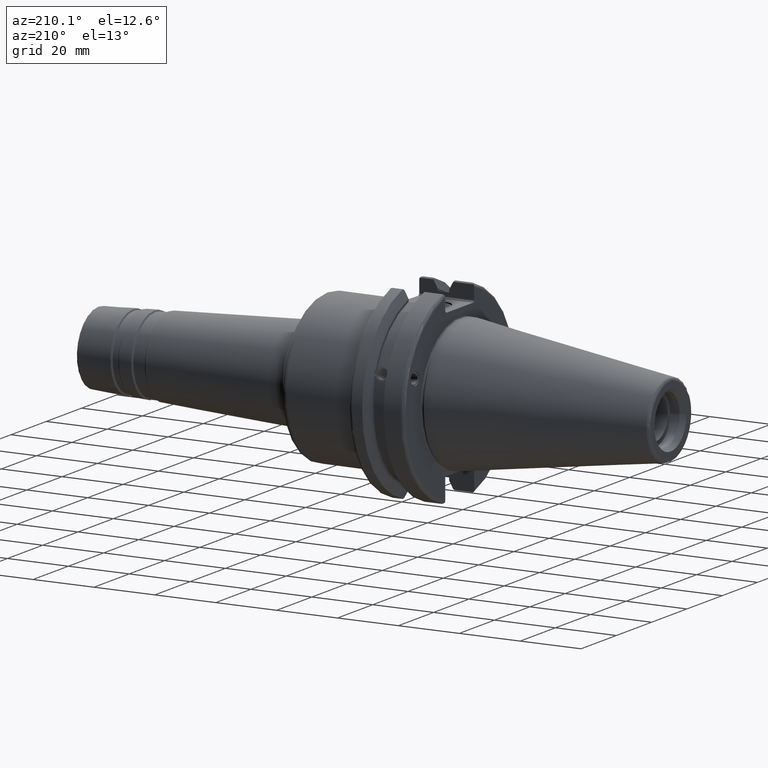
[diagram: clean part render]
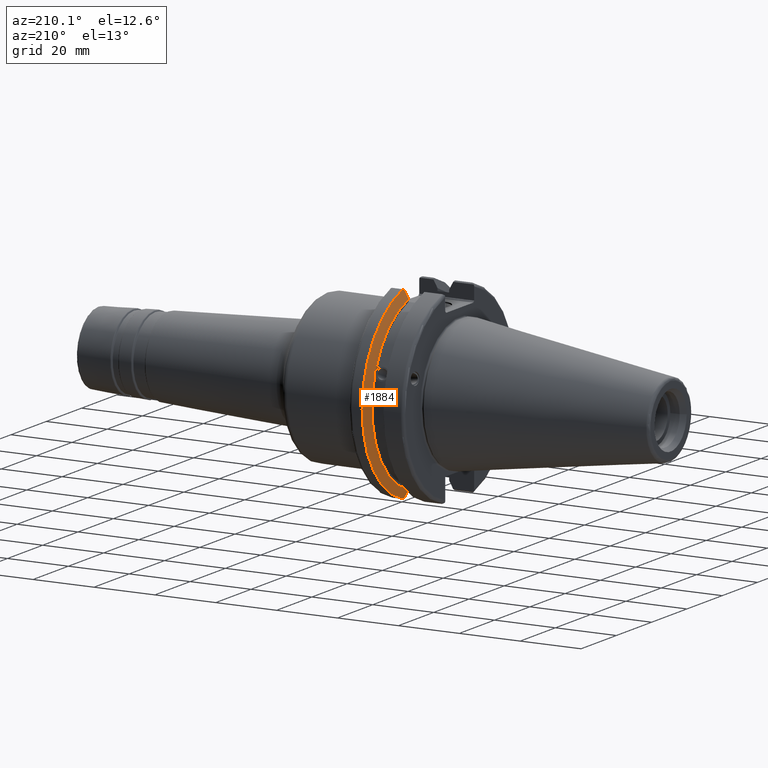
[diagram: same view with one face highlighted and labeled with its STEP entity id]
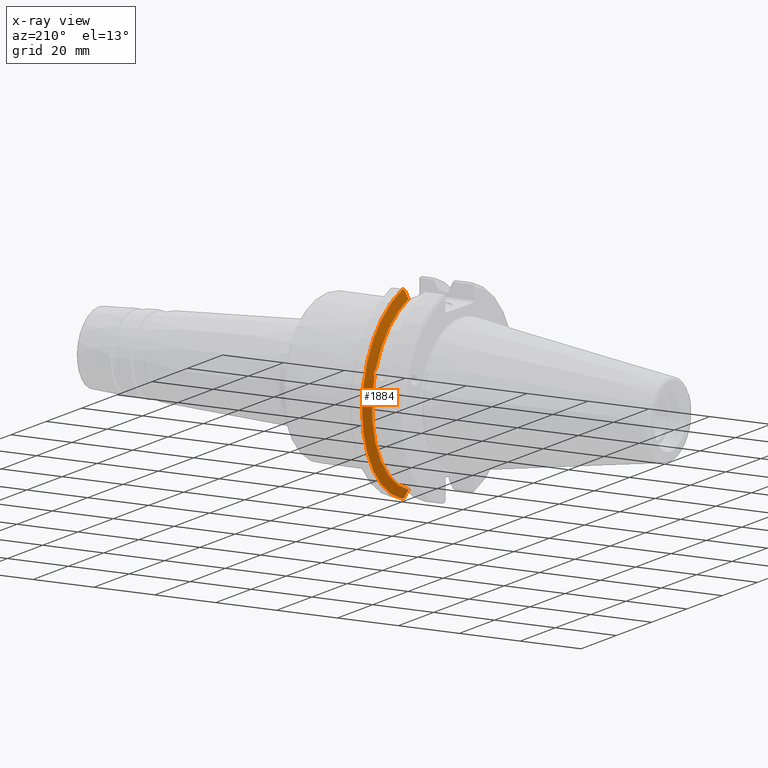
[diagram: x-ray of the same camera — body ghosted, the highlighted face saturated]
A machine part, auxiliary view. The second image highlights one B-rep face of the part: STEP entity #1884.
The next image is the same camera in x-ray: the body ghosted, the highlighted face saturated — about 0% of this face is hidden behind the body in this view.
In plain terms, the highlighted conical surface has half-angle 60 deg.
Its self-contained STEP definition (entity closure, byte-faithful):
#19=(
BOUNDED_CURVE()
B_SPLINE_CURVE(2,(#3439,#3440,#3441),.UNSPECIFIED.,.F.,.F.)
B_SPLINE_CURVE_WITH_KNOTS((3,3),(0.,0.276549142795285),.UNSPECIFIED.)
CURVE()
GEOMETRIC_REPRESENTATION_ITEM()
RATIONAL_B_SPLINE_CURVE((1.,1.00095203903482,1.00031614444868))
REPRESENTATION_ITEM('')
);
#20=(
BOUNDED_CURVE()
B_SPLINE_CURVE(2,(#3443,#3444,#3445),.UNSPECIFIED.,.F.,.F.)
B_SPLINE_CURVE_WITH_KNOTS((3,3),(0.,0.0639048713675832),.UNSPECIFIED.)
CURVE()
GEOMETRIC_REPRESENTATION_ITEM()
RATIONAL_B_SPLINE_CURVE((1.,1.0002844421829,1.00047644010585))
REPRESENTATION_ITEM('')
);
#21=(
BOUNDED_CURVE()
B_SPLINE_CURVE(2,(#3449,#3450,#3451),.UNSPECIFIED.,.F.,.F.)
B_SPLINE_CURVE_WITH_KNOTS((3,3),(0.329353533631253,0.393258405001026),
 .UNSPECIFIED.)
CURVE()
GEOMETRIC_REPRESENTATION_ITEM()
RATIONAL_B_SPLINE_CURVE((1.00047644010593,1.00028444218295,1.))
REPRESENTATION_ITEM('')
);
#22=(
BOUNDED_CURVE()
B_SPLINE_CURVE(2,(#3453,#3454,#3455),.UNSPECIFIED.,.F.,.F.)
B_SPLINE_CURVE_WITH_KNOTS((3,3),(0.0550586467398919,0.331607789535851),
 .UNSPECIFIED.)
CURVE()
GEOMETRIC_REPRESENTATION_ITEM()
RATIONAL_B_SPLINE_CURVE((1.00031614444973,1.00095203903796,1.))
REPRESENTATION_ITEM('')
);
#133=B_SPLINE_CURVE_WITH_KNOTS('',3,(#3364,#3365,#3366,#3367,#3368,#3369,
#3370,#3371),.UNSPECIFIED.,.F.,.F.,(4,2,2,4),(0.451995700189026,0.464547828547662,
0.504528771685167,0.544509714822672),.UNSPECIFIED.);
#137=B_SPLINE_CURVE_WITH_KNOTS('',3,(#3426,#3427,#3428,#3429,#3430,#3431,
#3432,#3433),.UNSPECIFIED.,.F.,.F.,(4,2,2,4),(0.544509714822672,0.584490657960178,
0.624471601097683,0.637023729456321),.UNSPECIFIED.);
#239=FACE_OUTER_BOUND('',#354,.T.);
#354=EDGE_LOOP('',(#1533,#1534,#1535,#1536,#1537,#1538,#1539,#1540,#1541));
#698=CIRCLE('',#2121,28.9593772964944);
#699=CIRCLE('',#2122,31.75);
#700=CIRCLE('',#2123,28.9593772964944);
#852=VERTEX_POINT('',#3361);
#853=VERTEX_POINT('',#3363);
#860=VERTEX_POINT('',#3424);
#861=VERTEX_POINT('',#3436);
#862=VERTEX_POINT('',#3438);
#863=VERTEX_POINT('',#3442);
#864=VERTEX_POINT('',#3446);
#865=VERTEX_POINT('',#3448);
#866=VERTEX_POINT('',#3452);
#1097=EDGE_CURVE('',#853,#852,#133,.T.);
#1105=EDGE_CURVE('',#852,#860,#137,.T.);
#1106=EDGE_CURVE('',#860,#861,#698,.T.);
#1107=EDGE_CURVE('',#861,#862,#19,.T.);
#1108=EDGE_CURVE('',#863,#862,#20,.T.);
#1109=EDGE_CURVE('',#864,#863,#699,.T.);
#1110=EDGE_CURVE('',#865,#864,#21,.T.);
#1111=EDGE_CURVE('',#865,#866,#22,.T.);
#1112=EDGE_CURVE('',#866,#853,#700,.T.);
#1533=ORIENTED_EDGE('',*,*,#1097,.T.);
#1534=ORIENTED_EDGE('',*,*,#1105,.T.);
#1535=ORIENTED_EDGE('',*,*,#1106,.T.);
#1536=ORIENTED_EDGE('',*,*,#1107,.T.);
#1537=ORIENTED_EDGE('',*,*,#1108,.F.);
#1538=ORIENTED_EDGE('',*,*,#1109,.F.);
#1539=ORIENTED_EDGE('',*,*,#1110,.F.);
#1540=ORIENTED_EDGE('',*,*,#1111,.T.);
#1541=ORIENTED_EDGE('',*,*,#1112,.T.);
#1820=CONICAL_SURFACE('',#2120,30.3546886482472,1.0471975511966);
#1884=ADVANCED_FACE('',(#239),#1820,.T.);
#2120=AXIS2_PLACEMENT_3D('',#3435,#2582,#2583);
#2121=AXIS2_PLACEMENT_3D('',#3437,#2584,#2585);
#2122=AXIS2_PLACEMENT_3D('',#3447,#2586,#2587);
#2123=AXIS2_PLACEMENT_3D('',#3456,#2588,#2589);
#2582=DIRECTION('center_axis',(1.,0.,0.));
#2583=DIRECTION('ref_axis',(0.,1.,0.));
#2584=DIRECTION('center_axis',(1.,0.,0.));
#2585=DIRECTION('ref_axis',(0.,0.,-1.));
#2586=DIRECTION('center_axis',(1.,0.,0.));
#2587=DIRECTION('ref_axis',(0.,0.,-1.));
#2588=DIRECTION('center_axis',(1.,0.,0.));
#2589=DIRECTION('ref_axis',(0.,0.,-1.));
#3361=CARTESIAN_POINT('',(13.2341,27.51401829017,10.0142836826778));
#3363=CARTESIAN_POINT('',(13.0491,27.4956274489925,9.09043478536247));
#3364=CARTESIAN_POINT('Ctrl Pts',(13.0491,27.4956274489925,9.09043478536247));
#3365=CARTESIAN_POINT('Ctrl Pts',(13.0632204071996,27.5087667900418,9.12860597076219));
#3366=CARTESIAN_POINT('Ctrl Pts',(13.0766929817857,27.5206055003513,9.16696618806878));
#3367=CARTESIAN_POINT('Ctrl Pts',(13.130081441159,27.5642934663232,9.32791534028656));
#3368=CARTESIAN_POINT('Ctrl Pts',(13.1682197084175,27.5867382255984,9.46717946402648));
#3369=CARTESIAN_POINT('Ctrl Pts',(13.2204106446058,27.5847569104122,9.74771639360672));
#3370=CARTESIAN_POINT('Ctrl Pts',(13.2341,27.559599249844,9.8890510252165));
#3371=CARTESIAN_POINT('Ctrl Pts',(13.2341,27.51401829017,10.0142836826778));
#3424=CARTESIAN_POINT('',(13.0491,26.9060914640648,10.7101715919071));
#3426=CARTESIAN_POINT('Ctrl Pts',(13.2341,27.51401829017,10.0142836826778));
#3427=CARTESIAN_POINT('Ctrl Pts',(13.2341,27.4684373304961,10.139516340139));
#3428=CARTESIAN_POINT('Ctrl Pts',(13.2204106446058,27.3968610665578,10.2639559818059));
#3429=CARTESIAN_POINT('Ctrl Pts',(13.1682197084175,27.2180531796526,10.4801333026531));
#3430=CARTESIAN_POINT('Ctrl Pts',(13.130081441159,27.1113422433189,10.5723885976054));
#3431=CARTESIAN_POINT('Ctrl Pts',(13.0766929817857,26.9744191989197,10.6676007180674));
#3432=CARTESIAN_POINT('Ctrl Pts',(13.0632204071996,26.9406927482839,10.6893765730703));
#3433=CARTESIAN_POINT('Ctrl Pts',(13.0491,26.9060914640648,10.7101715919071));
#3435=CARTESIAN_POINT('Origin',(13.8546833845378,0.,0.));
#3436=CARTESIAN_POINT('',(13.0491,8.19,27.7771386827498));
#3437=CARTESIAN_POINT('Origin',(13.0491,0.,0.));
#3438=CARTESIAN_POINT('',(14.3815146964874,8.19,30.1755016258903));
#3439=CARTESIAN_POINT('Ctrl Pts',(13.0491,8.19,27.7771386827498));
#3440=CARTESIAN_POINT('Ctrl Pts',(13.6877364384881,8.19,28.930368953992));
#3441=CARTESIAN_POINT('Ctrl Pts',(14.3815146964874,8.19,30.1755016258903));
#3442=CARTESIAN_POINT('',(14.6602667690756,8.67204822802685,30.5427254764662));
#3443=CARTESIAN_POINT('Ctrl Pts',(14.6602667690756,8.67204822802687,30.5427254764662));
#3444=CARTESIAN_POINT('Ctrl Pts',(14.5192085187837,8.42917748262644,30.357706789263));
#3445=CARTESIAN_POINT('Ctrl Pts',(14.3815146964874,8.19,30.1755016258903));
#3446=CARTESIAN_POINT('',(14.6602667690756,8.67204822802685,-30.5427254764662));
#3447=CARTESIAN_POINT('Origin',(14.6602667690756,0.,0.));
#3448=CARTESIAN_POINT('',(14.3815146964874,8.18999999999999,-30.1755016258903));
#3449=CARTESIAN_POINT('Ctrl Pts',(14.3815146964874,8.18999999999999,-30.1755016258903));
#3450=CARTESIAN_POINT('Ctrl Pts',(14.5192085187884,8.4291774826346,-30.3577067892692));
#3451=CARTESIAN_POINT('Ctrl Pts',(14.6602667690756,8.67204822802686,-30.5427254764662));
#3452=CARTESIAN_POINT('',(13.0491,8.19,-27.7771386827498));
#3453=CARTESIAN_POINT('Ctrl Pts',(14.3815146964874,8.18999999999999,-30.1755016258903));
#3454=CARTESIAN_POINT('Ctrl Pts',(13.6877364384816,8.18999999999999,-28.9303689539805));
#3455=CARTESIAN_POINT('Ctrl Pts',(13.0491,8.19,-27.7771386827498));
#3456=CARTESIAN_POINT('Origin',(13.0491,0.,0.));